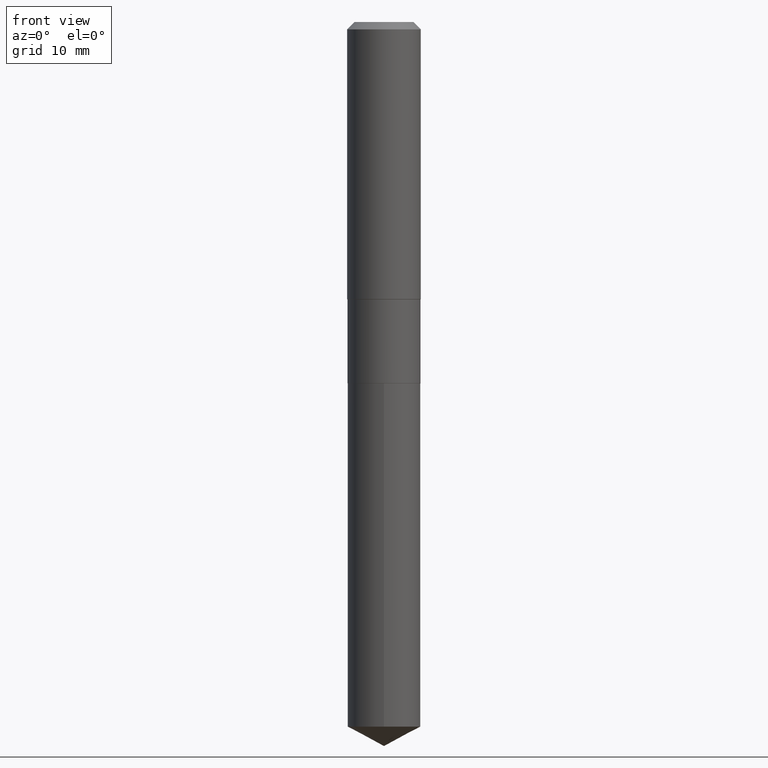
[diagram: clean part render]
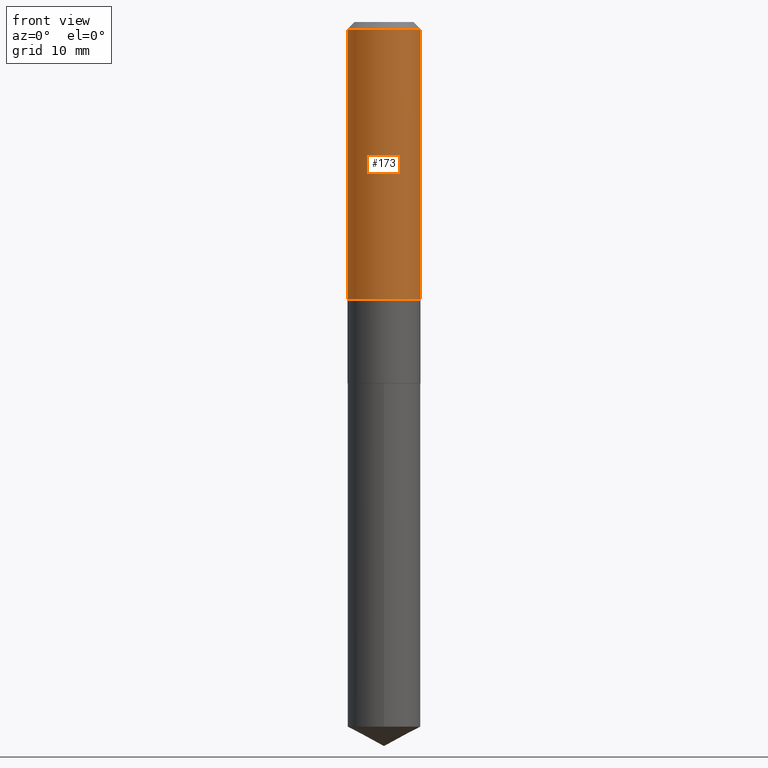
[diagram: same view with one face highlighted and labeled with its STEP entity id]
A machine part, front view. The second image highlights one B-rep face of the part: STEP entity #173.
In plain terms, the highlighted cylindrical surface (partial cylindrical patch) has radius 5.9995 mm, axis along (-0, 0, 1).
Its self-contained STEP definition (entity closure, byte-faithful):
#5 = LINE ( 'NONE', #370, #457 ) ;
#16 = CARTESIAN_POINT ( 'NONE',  ( 1.155239464041865506E-30, -1.649375784469511859E-16, -0.04724000000000028177 ) ) ;
#17 = EDGE_CURVE ( 'NONE', #35, #337, #180, .T. ) ;
#21 = FACE_OUTER_BOUND ( 'NONE', #315, .T. ) ;
#35 = VERTEX_POINT ( 'NONE', #125 ) ;
#42 = CARTESIAN_POINT ( 'NONE',  ( 0.2361999999999999933, -1.814313362916447440E-15, -0.04724000000000028177 ) ) ;
#45 = ORIENTED_EDGE ( 'NONE', *, *, #355, .T. ) ;
#95 = CYLINDRICAL_SURFACE ( 'NONE', #456, 0.2362000000000001043 ) ;
#96 = DIRECTION ( 'NONE',  ( 1.000000000000000000, -6.982962677686266711E-15, 4.876176775795935793E-29 ) ) ;
#100 = DIRECTION ( 'NONE',  ( -2.445468806185136877E-29, 3.491481338843145188E-15, 1.000000000000000000 ) ) ;
#108 = VERTEX_POINT ( 'NONE', #483 ) ;
#123 = DIRECTION ( 'NONE',  ( 1.000000000000000000, -6.982962677686266711E-15, 0.000000000000000000 ) ) ;
#125 = CARTESIAN_POINT ( 'NONE',  ( -0.2361999999999999933, -1.508355618690086330E-15, -0.04724000000000028177 ) ) ;
#143 = VERTEX_POINT ( 'NONE', #320 ) ;
#157 = EDGE_CURVE ( 'NONE', #143, #337, #397, .T. ) ;
#165 = CARTESIAN_POINT ( 'NONE',  ( 0.2362000000000001043, -1.649375784469496920E-15, 1.151752954443000508E-29 ) ) ;
#173 = ADVANCED_FACE ( 'NONE', ( #21 ), #95, .T. ) ;
#176 = CARTESIAN_POINT ( 'NONE',  ( 4.348410357718098409E-29, -6.208377542663936505E-15, -1.778149999999999231 ) ) ;
#180 = CIRCLE ( 'NONE', #244, 0.2361999999999999933 ) ;
#183 = DIRECTION ( 'NONE',  ( -2.445468806185136597E-29, 3.491481338843145583E-15, 1.000000000000000000 ) ) ;
#185 = DIRECTION ( 'NONE',  ( 1.000000000000000000, -6.982962677686266711E-15, 0.000000000000000000 ) ) ;
#201 = CARTESIAN_POINT ( 'NONE',  ( 0.000000000000000000, 0.000000000000000000, 0.000000000000000000 ) ) ;
#232 = CIRCLE ( 'NONE', #399, 0.2362000000000002153 ) ;
#244 = AXIS2_PLACEMENT_3D ( 'NONE', #16, #380, #123 ) ;
#287 = VECTOR ( 'NONE', #100, 39.37007874015748143 ) ;
#293 = DIRECTION ( 'NONE',  ( -2.445468806185136877E-29, 3.491481338843145188E-15, 1.000000000000000000 ) ) ;
#299 = ORIENTED_EDGE ( 'NONE', *, *, #157, .T. ) ;
#315 = EDGE_LOOP ( 'NONE', ( #335, #45, #299, #332 ) ) ;
#320 = CARTESIAN_POINT ( 'NONE',  ( 0.2362000000000002153, -7.857753327133433819E-15, -1.778149999999999231 ) ) ;
#325 = DIRECTION ( 'NONE',  ( -2.445468806185136597E-29, 3.491481338843145583E-15, 1.000000000000000000 ) ) ;
#332 = ORIENTED_EDGE ( 'NONE', *, *, #17, .F. ) ;
#335 = ORIENTED_EDGE ( 'NONE', *, *, #403, .F. ) ;
#337 = VERTEX_POINT ( 'NONE', #42 ) ;
#355 = EDGE_CURVE ( 'NONE', #108, #143, #232, .T. ) ;
#370 = CARTESIAN_POINT ( 'NONE',  ( -0.2362000000000001043, 1.678301941865357380E-15, -1.161852468318209317E-29 ) ) ;
#380 = DIRECTION ( 'NONE',  ( -2.445468806185136597E-29, 3.491481338843145583E-15, 1.000000000000000000 ) ) ;
#397 = LINE ( 'NONE', #165, #287 ) ;
#399 = AXIS2_PLACEMENT_3D ( 'NONE', #176, #183, #185 ) ;
#403 = EDGE_CURVE ( 'NONE', #108, #35, #5, .T. ) ;
#456 = AXIS2_PLACEMENT_3D ( 'NONE', #201, #325, #96 ) ;
#457 = VECTOR ( 'NONE', #293, 39.37007874015748143 ) ;
#483 = CARTESIAN_POINT ( 'NONE',  ( -0.2362000000000002153, -4.530075600798577744E-15, -1.778149999999999231 ) ) ;